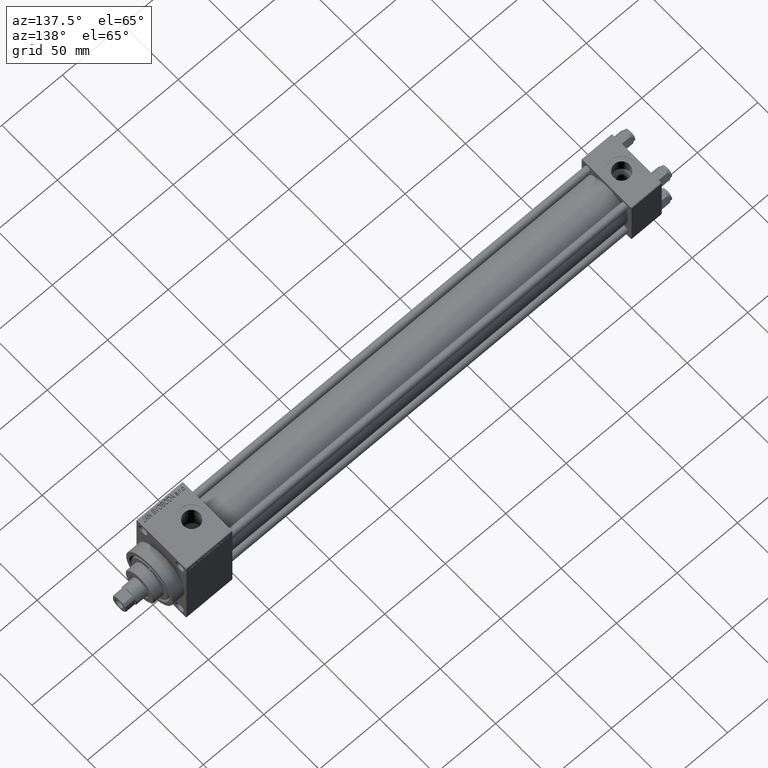
[diagram: clean part render]
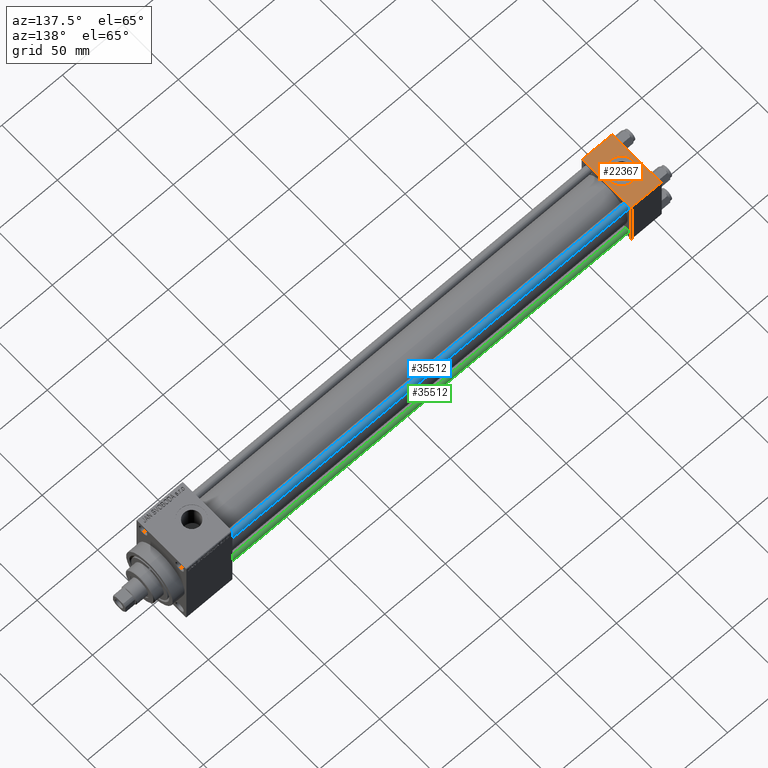
[diagram: same view with three faces highlighted in distinct colors, each labeled with its STEP entity id]
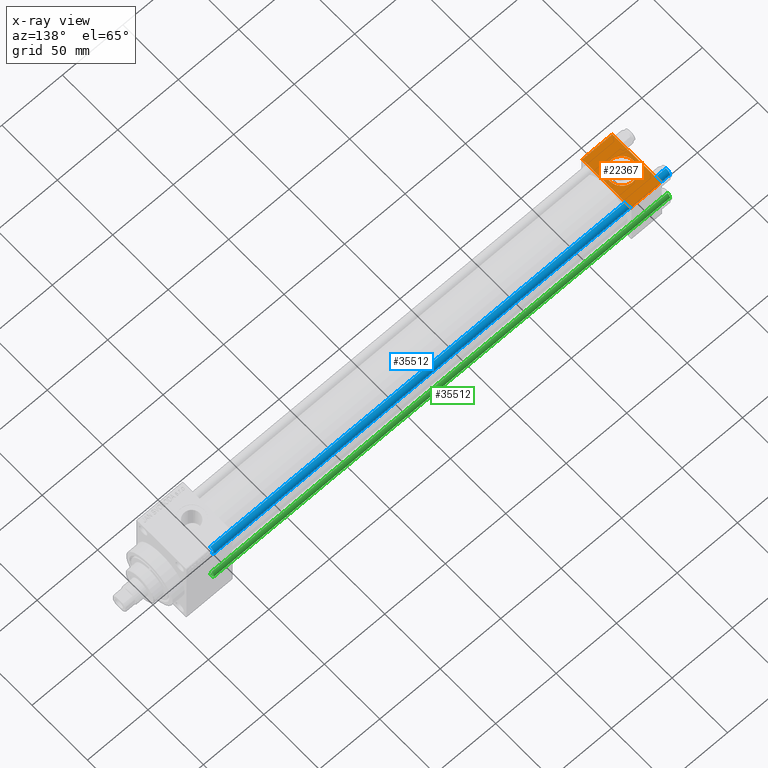
[diagram: x-ray of the same camera — body ghosted, the three highlighted faces saturated]
A machine part, auxiliary view with three faces highlighted in distinct colors.
The next image is the same camera in x-ray (body ghosted, the three faces saturated) — at least one of them is partly hidden behind the body in this view.
Their STEP definitions:

[orange] entity #22367 — the highlighted planar face has unit normal (0, 0, -1).
#2356 = CARTESIAN_POINT ( 'NONE',  ( 25.00000000000000000, -21.99999999999997868, 22.50000000000000000 ) ) ;
#3378 = CIRCLE ( 'NONE', #30192, 9.999999999999998224 ) ;
#3744 = DIRECTION ( 'NONE',  ( 0.000000000000000000, 0.000000000000000000, 1.000000000000000000 ) ) ;
#3902 = CARTESIAN_POINT ( 'NONE',  ( 0.000000000000000000, 21.99999999999999289, 22.50000000000000355 ) ) ;
#4178 = LINE ( 'NONE', #29603, #13565 ) ;
#5197 = CARTESIAN_POINT ( 'NONE',  ( 25.00000000000000000, -21.99999999999999289, 22.50000000000000000 ) ) ;
#5383 = AXIS2_PLACEMENT_3D ( 'NONE', #37796, #34227, #25847 ) ;
#5615 = DIRECTION ( 'NONE',  ( 0.000000000000000000, 0.000000000000000000, 1.000000000000000000 ) ) ;
#5856 = CARTESIAN_POINT ( 'NONE',  ( 12.50000000000000000, -1.734723475976807094E-15, 22.50000000000000000 ) ) ;
#6011 = CARTESIAN_POINT ( 'NONE',  ( 0.000000000000000000, -21.99999999999997868, 22.50000000000000000 ) ) ;
#6815 = EDGE_CURVE ( 'NONE', #19420, #42842, #38021, .T. ) ;
#8567 = FACE_BOUND ( 'NONE', #19497, .T. ) ;
#9125 = VECTOR ( 'NONE', #40053, 1000.000000000000000 ) ;
#10086 = EDGE_CURVE ( 'NONE', #19026, #16150, #3378, .T. ) ;
#10160 = ORIENTED_EDGE ( 'NONE', *, *, #32381, .T. ) ;
#10260 = ORIENTED_EDGE ( 'NONE', *, *, #10086, .F. ) ;
#12432 = VECTOR ( 'NONE', #25253, 1000.000000000000000 ) ;
#12740 = CARTESIAN_POINT ( 'NONE',  ( 2.500000000000003997, -5.100766768294543310E-16, 22.50000000000000000 ) ) ;
#13565 = VECTOR ( 'NONE', #32941, 1000.000000000000000 ) ;
#13750 = AXIS2_PLACEMENT_3D ( 'NONE', #5856, #5615, #38682 ) ;
#16150 = VERTEX_POINT ( 'NONE', #12740 ) ;
#16461 = CARTESIAN_POINT ( 'NONE',  ( 22.50000000000000000, -1.734723475976807094E-15, 22.50000000000000000 ) ) ;
#16712 = DIRECTION ( 'NONE',  ( 1.000000000000000000, 0.000000000000000000, 0.000000000000000000 ) ) ;
#17379 = VERTEX_POINT ( 'NONE', #31960 ) ;
#18048 = LINE ( 'NONE', #32650, #9125 ) ;
#18149 = CARTESIAN_POINT ( 'NONE',  ( 12.50000000000000000, -1.734723475976807094E-15, 22.50000000000000000 ) ) ;
#18834 = ORIENTED_EDGE ( 'NONE', *, *, #20652, .T. ) ;
#19026 = VERTEX_POINT ( 'NONE', #16461 ) ;
#19420 = VERTEX_POINT ( 'NONE', #6011 ) ;
#19497 = EDGE_LOOP ( 'NONE', ( #10260, #29786 ) ) ;
#20652 = EDGE_CURVE ( 'NONE', #22157, #19420, #18048, .T. ) ;
#21239 = EDGE_CURVE ( 'NONE', #16150, #19026, #44307, .T. ) ;
#22157 = VERTEX_POINT ( 'NONE', #47130 ) ;
#22367 = ADVANCED_FACE ( 'NONE', ( #8567, #37084 ), #29681, .F. ) ;
#25253 = DIRECTION ( 'NONE',  ( -1.000000000000000000, 0.000000000000000000, 0.000000000000000000 ) ) ;
#25847 = DIRECTION ( 'NONE',  ( 0.000000000000000000, 1.000000000000000000, 7.709882115452476934E-17 ) ) ;
#29603 = CARTESIAN_POINT ( 'NONE',  ( 25.00000000000000000, 22.50000000000000000, 22.50000000000000355 ) ) ;
#29681 = PLANE ( 'NONE',  #5383 ) ;
#29786 = ORIENTED_EDGE ( 'NONE', *, *, #21239, .F. ) ;
#30192 = AXIS2_PLACEMENT_3D ( 'NONE', #18149, #3744, #43509 ) ;
#31960 = CARTESIAN_POINT ( 'NONE',  ( 25.00000000000000000, 21.99999999999999289, 22.50000000000000355 ) ) ;
#32381 = EDGE_CURVE ( 'NONE', #17379, #22157, #32905, .T. ) ;
#32650 = CARTESIAN_POINT ( 'NONE',  ( 0.000000000000000000, 22.50000000000000000, 22.50000000000000355 ) ) ;
#32905 = LINE ( 'NONE', #3902, #12432 ) ;
#32941 = DIRECTION ( 'NONE',  ( 0.000000000000000000, -1.000000000000000000, -7.709882115452476934E-17 ) ) ;
#34227 = DIRECTION ( 'NONE',  ( 0.000000000000000000, 7.709882115452476934E-17, -1.000000000000000000 ) ) ;
#34991 = ORIENTED_EDGE ( 'NONE', *, *, #6815, .T. ) ;
#37084 = FACE_OUTER_BOUND ( 'NONE', #47073, .T. ) ;
#37695 = ORIENTED_EDGE ( 'NONE', *, *, #47200, .F. ) ;
#37796 = CARTESIAN_POINT ( 'NONE',  ( 25.00000000000000000, 22.50000000000000000, 22.50000000000000355 ) ) ;
#38021 = LINE ( 'NONE', #5197, #40030 ) ;
#38682 = DIRECTION ( 'NONE',  ( 1.000000000000000000, 0.000000000000000000, 0.000000000000000000 ) ) ;
#40030 = VECTOR ( 'NONE', #16712, 1000.000000000000000 ) ;
#40053 = DIRECTION ( 'NONE',  ( 0.000000000000000000, -1.000000000000000000, -7.709882115452476934E-17 ) ) ;
#42842 = VERTEX_POINT ( 'NONE', #2356 ) ;
#43509 = DIRECTION ( 'NONE',  ( 1.000000000000000000, 0.000000000000000000, 0.000000000000000000 ) ) ;
#44307 = CIRCLE ( 'NONE', #13750, 9.999999999999998224 ) ;
#47073 = EDGE_LOOP ( 'NONE', ( #18834, #34991, #37695, #10160 ) ) ;
#47130 = CARTESIAN_POINT ( 'NONE',  ( 0.000000000000000000, 21.99999999999999289, 22.50000000000000355 ) ) ;
#47200 = EDGE_CURVE ( 'NONE', #17379, #42842, #4178, .T. ) ;

[blue] entity #35512 — the highlighted cylindrical surface (edge-blend (fillet) strip) has radius 3 mm, axis along (-1, -0, 0).
#872 = ORIENTED_EDGE ( 'NONE', *, *, #19552, .T. ) ;
#1058 = CARTESIAN_POINT ( 'NONE',  ( 3.000000000000000444, 3.673940397442060361E-16, 377.5000000000000000 ) ) ;
#4393 = VERTEX_POINT ( 'NONE', #33997 ) ;
#4960 = CIRCLE ( 'NONE', #15685, 3.000000000000000444 ) ;
#6283 = DIRECTION ( 'NONE',  ( -0.000000000000000000, -0.000000000000000000, -1.000000000000000000 ) ) ;
#6334 = ORIENTED_EDGE ( 'NONE', *, *, #30495, .F. ) ;
#6673 = DIRECTION ( 'NONE',  ( -0.000000000000000000, -0.000000000000000000, -1.000000000000000000 ) ) ;
#7503 = VERTEX_POINT ( 'NONE', #44470 ) ;
#9901 = CARTESIAN_POINT ( 'NONE',  ( 3.000000000000000444, 3.673940397442060361E-16, 378.0000000000000000 ) ) ;
#10515 = EDGE_CURVE ( 'NONE', #7503, #41911, #4960, .T. ) ;
#10836 = LINE ( 'NONE', #9901, #39032 ) ;
#11368 = CARTESIAN_POINT ( 'NONE',  ( 0.000000000000000000, 0.000000000000000000, 0.5000000000000004441 ) ) ;
#15339 = DIRECTION ( 'NONE',  ( 1.000000000000000000, 0.000000000000000000, 0.000000000000000000 ) ) ;
#15685 = AXIS2_PLACEMENT_3D ( 'NONE', #11368, #44874, #25988 ) ;
#17449 = ORIENTED_EDGE ( 'NONE', *, *, #27061, .T. ) ;
#19162 = DIRECTION ( 'NONE',  ( 0.000000000000000000, 0.000000000000000000, -1.000000000000000000 ) ) ;
#19552 = EDGE_CURVE ( 'NONE', #4393, #41877, #39561, .T. ) ;
#21319 = DIRECTION ( 'NONE',  ( -1.000000000000000000, 0.000000000000000000, 0.000000000000000000 ) ) ;
#22718 = LINE ( 'NONE', #41606, #36076 ) ;
#25045 = AXIS2_PLACEMENT_3D ( 'NONE', #45007, #19162, #15339 ) ;
#25133 = CYLINDRICAL_SURFACE ( 'NONE', #42332, 3.000000000000000444 ) ;
#25988 = DIRECTION ( 'NONE',  ( 1.000000000000000000, 0.000000000000000000, 0.000000000000000000 ) ) ;
#27061 = EDGE_CURVE ( 'NONE', #41877, #7503, #10836, .T. ) ;
#27169 = ORIENTED_EDGE ( 'NONE', *, *, #10515, .T. ) ;
#30495 = EDGE_CURVE ( 'NONE', #4393, #41911, #22718, .T. ) ;
#33997 = CARTESIAN_POINT ( 'NONE',  ( -3.000000000000000444, 0.000000000000000000, 377.5000000000000000 ) ) ;
#34134 = CARTESIAN_POINT ( 'NONE',  ( -3.000000000000000444, 0.000000000000000000, 0.5000000000000004441 ) ) ;
#35512 = ADVANCED_FACE ( 'NONE', ( #36838 ), #25133, .T. ) ;
#36076 = VECTOR ( 'NONE', #36837, 1000.000000000000000 ) ;
#36837 = DIRECTION ( 'NONE',  ( -0.000000000000000000, -0.000000000000000000, -1.000000000000000000 ) ) ;
#36838 = FACE_OUTER_BOUND ( 'NONE', #39548, .T. ) ;
#39032 = VECTOR ( 'NONE', #6283, 1000.000000000000000 ) ;
#39495 = CARTESIAN_POINT ( 'NONE',  ( 0.000000000000000000, 0.000000000000000000, 378.0000000000000000 ) ) ;
#39548 = EDGE_LOOP ( 'NONE', ( #872, #17449, #27169, #6334 ) ) ;
#39561 = CIRCLE ( 'NONE', #25045, 3.000000000000000444 ) ;
#41606 = CARTESIAN_POINT ( 'NONE',  ( -3.000000000000000444, 0.000000000000000000, 378.0000000000000000 ) ) ;
#41877 = VERTEX_POINT ( 'NONE', #1058 ) ;
#41911 = VERTEX_POINT ( 'NONE', #34134 ) ;
#42332 = AXIS2_PLACEMENT_3D ( 'NONE', #39495, #6673, #21319 ) ;
#44470 = CARTESIAN_POINT ( 'NONE',  ( 3.000000000000000444, 3.673940397442060361E-16, 0.5000000000000004441 ) ) ;
#44874 = DIRECTION ( 'NONE',  ( -0.000000000000000000, -0.000000000000000000, 1.000000000000000000 ) ) ;
#45007 = CARTESIAN_POINT ( 'NONE',  ( 0.000000000000000000, 0.000000000000000000, 377.5000000000000000 ) ) ;

[green] entity #35512 — the highlighted cylindrical surface (edge-blend (fillet) strip) has radius 3 mm, axis along (1, -0, 0).
#872 = ORIENTED_EDGE ( 'NONE', *, *, #19552, .T. ) ;
#1058 = CARTESIAN_POINT ( 'NONE',  ( 3.000000000000000444, 3.673940397442060361E-16, 377.5000000000000000 ) ) ;
#4393 = VERTEX_POINT ( 'NONE', #33997 ) ;
#4960 = CIRCLE ( 'NONE', #15685, 3.000000000000000444 ) ;
#6283 = DIRECTION ( 'NONE',  ( -0.000000000000000000, -0.000000000000000000, -1.000000000000000000 ) ) ;
#6334 = ORIENTED_EDGE ( 'NONE', *, *, #30495, .F. ) ;
#6673 = DIRECTION ( 'NONE',  ( -0.000000000000000000, -0.000000000000000000, -1.000000000000000000 ) ) ;
#7503 = VERTEX_POINT ( 'NONE', #44470 ) ;
#9901 = CARTESIAN_POINT ( 'NONE',  ( 3.000000000000000444, 3.673940397442060361E-16, 378.0000000000000000 ) ) ;
#10515 = EDGE_CURVE ( 'NONE', #7503, #41911, #4960, .T. ) ;
#10836 = LINE ( 'NONE', #9901, #39032 ) ;
#11368 = CARTESIAN_POINT ( 'NONE',  ( 0.000000000000000000, 0.000000000000000000, 0.5000000000000004441 ) ) ;
#15339 = DIRECTION ( 'NONE',  ( 1.000000000000000000, 0.000000000000000000, 0.000000000000000000 ) ) ;
#15685 = AXIS2_PLACEMENT_3D ( 'NONE', #11368, #44874, #25988 ) ;
#17449 = ORIENTED_EDGE ( 'NONE', *, *, #27061, .T. ) ;
#19162 = DIRECTION ( 'NONE',  ( 0.000000000000000000, 0.000000000000000000, -1.000000000000000000 ) ) ;
#19552 = EDGE_CURVE ( 'NONE', #4393, #41877, #39561, .T. ) ;
#21319 = DIRECTION ( 'NONE',  ( -1.000000000000000000, 0.000000000000000000, 0.000000000000000000 ) ) ;
#22718 = LINE ( 'NONE', #41606, #36076 ) ;
#25045 = AXIS2_PLACEMENT_3D ( 'NONE', #45007, #19162, #15339 ) ;
#25133 = CYLINDRICAL_SURFACE ( 'NONE', #42332, 3.000000000000000444 ) ;
#25988 = DIRECTION ( 'NONE',  ( 1.000000000000000000, 0.000000000000000000, 0.000000000000000000 ) ) ;
#27061 = EDGE_CURVE ( 'NONE', #41877, #7503, #10836, .T. ) ;
#27169 = ORIENTED_EDGE ( 'NONE', *, *, #10515, .T. ) ;
#30495 = EDGE_CURVE ( 'NONE', #4393, #41911, #22718, .T. ) ;
#33997 = CARTESIAN_POINT ( 'NONE',  ( -3.000000000000000444, 0.000000000000000000, 377.5000000000000000 ) ) ;
#34134 = CARTESIAN_POINT ( 'NONE',  ( -3.000000000000000444, 0.000000000000000000, 0.5000000000000004441 ) ) ;
#35512 = ADVANCED_FACE ( 'NONE', ( #36838 ), #25133, .T. ) ;
#36076 = VECTOR ( 'NONE', #36837, 1000.000000000000000 ) ;
#36837 = DIRECTION ( 'NONE',  ( -0.000000000000000000, -0.000000000000000000, -1.000000000000000000 ) ) ;
#36838 = FACE_OUTER_BOUND ( 'NONE', #39548, .T. ) ;
#39032 = VECTOR ( 'NONE', #6283, 1000.000000000000000 ) ;
#39495 = CARTESIAN_POINT ( 'NONE',  ( 0.000000000000000000, 0.000000000000000000, 378.0000000000000000 ) ) ;
#39548 = EDGE_LOOP ( 'NONE', ( #872, #17449, #27169, #6334 ) ) ;
#39561 = CIRCLE ( 'NONE', #25045, 3.000000000000000444 ) ;
#41606 = CARTESIAN_POINT ( 'NONE',  ( -3.000000000000000444, 0.000000000000000000, 378.0000000000000000 ) ) ;
#41877 = VERTEX_POINT ( 'NONE', #1058 ) ;
#41911 = VERTEX_POINT ( 'NONE', #34134 ) ;
#42332 = AXIS2_PLACEMENT_3D ( 'NONE', #39495, #6673, #21319 ) ;
#44470 = CARTESIAN_POINT ( 'NONE',  ( 3.000000000000000444, 3.673940397442060361E-16, 0.5000000000000004441 ) ) ;
#44874 = DIRECTION ( 'NONE',  ( -0.000000000000000000, -0.000000000000000000, 1.000000000000000000 ) ) ;
#45007 = CARTESIAN_POINT ( 'NONE',  ( 0.000000000000000000, 0.000000000000000000, 377.5000000000000000 ) ) ;